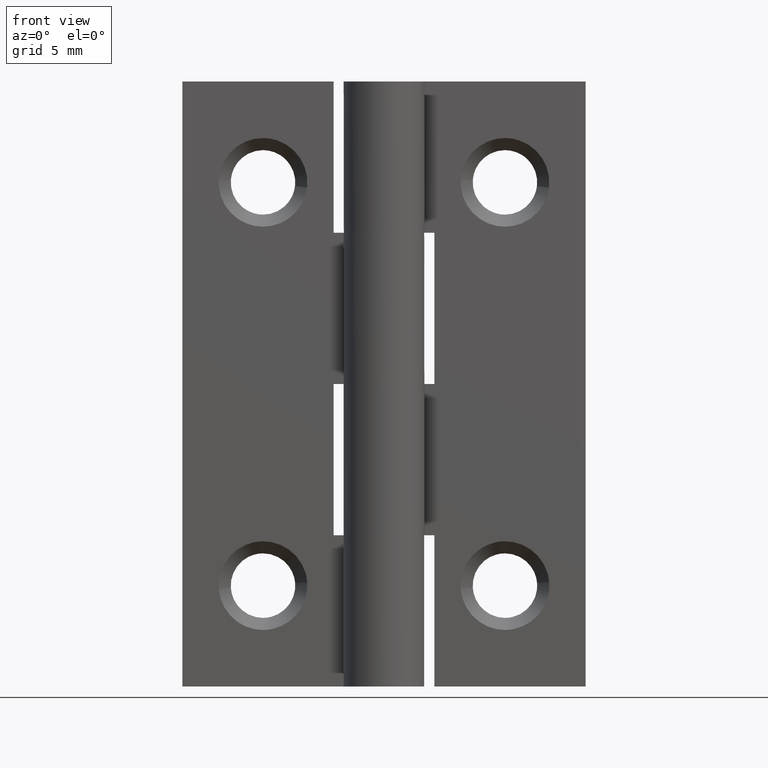
[diagram: clean part render]
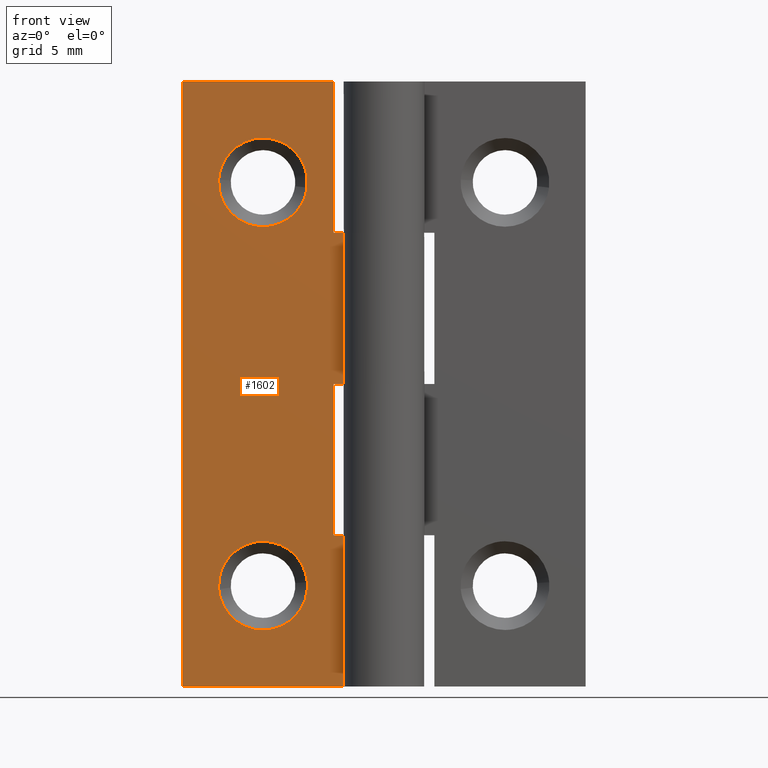
[diagram: same view with one face highlighted and labeled with its STEP entity id]
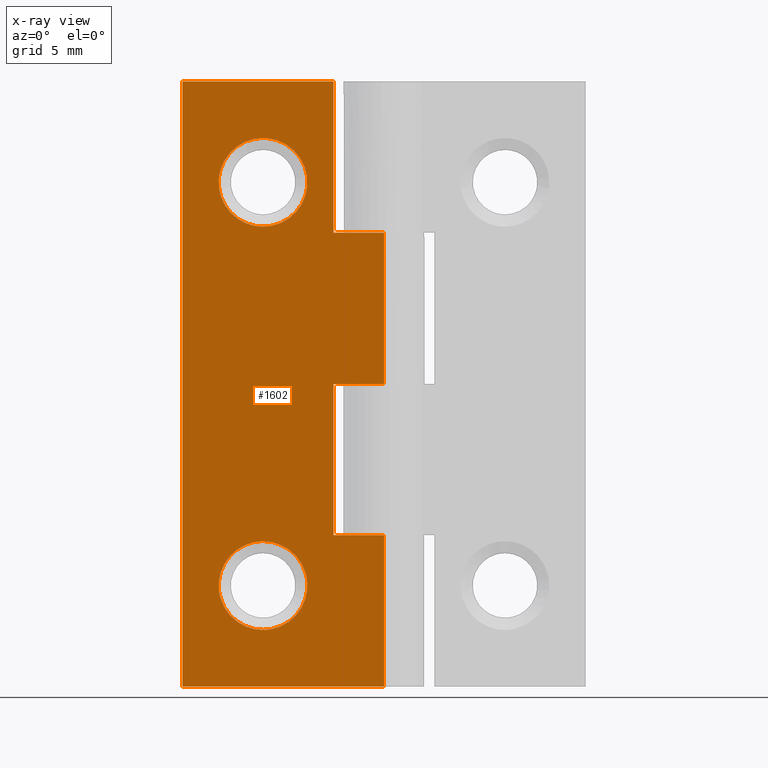
[diagram: x-ray of the same camera — body ghosted, the highlighted face saturated]
A machine part, front view. The second image highlights one B-rep face of the part: STEP entity #1602.
The next image is the same camera in x-ray: the body ghosted, the highlighted face saturated — about 0% of this face is hidden behind the body in this view.
In plain terms, the highlighted face is a freeform B-spline surface patch.
Its self-contained STEP definition (entity closure, byte-faithful):
#530=CARTESIAN_POINT('',(-3.815379041998920,0.999999999983829,24.740324683626660));
#531=VERTEX_POINT('',#530);
#537=CARTESIAN_POINT('',(-6.0,1.0,27.199999999999999));
#538=VERTEX_POINT('',#537);
#539=CARTESIAN_POINT('',(-3.815379041998920,0.999999999983829,24.740324683626664));
#540=CARTESIAN_POINT('',(-3.800000000000000,1.0,24.869706936637900));
#541=CARTESIAN_POINT('',(-3.800000000000000,1.0,25.0));
#542=CARTESIAN_POINT('',(-3.800000000000000,1.0,27.200000000000010));
#543=CARTESIAN_POINT('',(-6.0,1.0,27.199999999999999));
#551=(BOUNDED_CURVE()B_SPLINE_CURVE(2,(#539,#540,#541,#542,#543),.UNSPECIFIED.,.F.,.U.)B_SPLINE_CURVE_WITH_KNOTS((3,2,3),(0.229562473496062,0.250000000000000,0.500000000000000),.UNSPECIFIED.)CURVE()GEOMETRIC_REPRESENTATION_ITEM()RATIONAL_B_SPLINE_CURVE((0.956026754149504,0.976055948310706,1.0,0.707106781186548,1.0))REPRESENTATION_ITEM(''));
#552=EDGE_CURVE('',#531,#538,#551,.T.);
#554=CARTESIAN_POINT('',(-8.195896556538806,0.999999999980032,25.134306787128850));
#555=VERTEX_POINT('',#554);
#556=CARTESIAN_POINT('',(-6.0,1.0,27.199999999999999));
#557=CARTESIAN_POINT('',(-8.069553346907471,1.0,27.200000000000003));
#558=CARTESIAN_POINT('',(-8.195896556538806,0.999999999980032,25.134306787128850));
#566=(BOUNDED_CURVE()B_SPLINE_CURVE(2,(#556,#557,#558),.UNSPECIFIED.,.F.,.U.)B_SPLINE_CURVE_WITH_KNOTS((3,3),(0.500000000000000,0.739332962218246),.UNSPECIFIED.)CURVE()GEOMETRIC_REPRESENTATION_ITEM()RATIONAL_B_SPLINE_CURVE((1.0,0.719603993310958,0.976072041622361))REPRESENTATION_ITEM(''));
#567=EDGE_CURVE('',#538,#555,#566,.T.);
#601=CARTESIAN_POINT('',(-6.0,1.0,22.800000000000001));
#602=VERTEX_POINT('',#601);
#603=CARTESIAN_POINT('',(-8.195896556538806,0.999999999980032,25.134306787128857));
#604=CARTESIAN_POINT('',(-8.200000000000001,1.0,25.067216079408265));
#605=CARTESIAN_POINT('',(-8.200000000000001,1.0,25.0));
#606=CARTESIAN_POINT('',(-8.200000000000001,1.0,22.799999999999994));
#607=CARTESIAN_POINT('',(-6.0,1.0,22.800000000000001));
#615=(BOUNDED_CURVE()B_SPLINE_CURVE(2,(#603,#604,#605,#606,#607),.UNSPECIFIED.,.F.,.U.)B_SPLINE_CURVE_WITH_KNOTS((3,2,3),(0.739332962218246,0.750000000000000,1.0),.UNSPECIFIED.)CURVE()GEOMETRIC_REPRESENTATION_ITEM()RATIONAL_B_SPLINE_CURVE((0.976072041622361,0.987502787875590,1.0,0.707106781186548,1.0))REPRESENTATION_ITEM(''));
#616=EDGE_CURVE('',#555,#602,#615,.T.);
#618=CARTESIAN_POINT('',(-6.0,1.0,22.800000000000001));
#619=CARTESIAN_POINT('',(-4.046016043134988,1.0,22.799999999999994));
#620=CARTESIAN_POINT('',(-3.815379041998920,0.999999999983829,24.740324683626653));
#628=(BOUNDED_CURVE()B_SPLINE_CURVE(2,(#618,#619,#620),.UNSPECIFIED.,.F.,.U.)B_SPLINE_CURVE_WITH_KNOTS((3,3),(0.0,0.229562473496062),.UNSPECIFIED.)CURVE()GEOMETRIC_REPRESENTATION_ITEM()RATIONAL_B_SPLINE_CURVE((1.0,0.731050832875842,0.956026754149504))REPRESENTATION_ITEM(''));
#629=EDGE_CURVE('',#602,#531,#628,.T.);
#855=CARTESIAN_POINT('',(-3.806781865777370,0.999999999975531,5.172610010789256));
#856=VERTEX_POINT('',#855);
#862=CARTESIAN_POINT('',(-6.0,1.0,7.200000000000000));
#863=VERTEX_POINT('',#862);
#864=CARTESIAN_POINT('',(-6.0,1.0,7.200000000000000));
#865=CARTESIAN_POINT('',(-3.966340918698092,1.0,7.200000000000001));
#866=CARTESIAN_POINT('',(-3.806781865777370,0.999999999975531,5.172610010789257));
#874=(BOUNDED_CURVE()B_SPLINE_CURVE(2,(#864,#865,#866),.UNSPECIFIED.,.F.,.U.)B_SPLINE_CURVE_WITH_KNOTS((3,3),(0.0,0.236331300603679),.UNSPECIFIED.)CURVE()GEOMETRIC_REPRESENTATION_ITEM()RATIONAL_B_SPLINE_CURVE((1.0,0.723120658639275,0.969723356111111))REPRESENTATION_ITEM(''));
#875=EDGE_CURVE('',#863,#856,#874,.T.);
#877=CARTESIAN_POINT('',(-8.193218134222631,0.999999999975530,4.827389989210745));
#878=VERTEX_POINT('',#877);
#879=CARTESIAN_POINT('',(-8.193218134222631,0.999999999975530,4.827389989210745));
#880=CARTESIAN_POINT('',(-8.200000000000001,1.0,4.913561764396186));
#881=CARTESIAN_POINT('',(-8.200000000000001,1.0,5.0));
#882=CARTESIAN_POINT('',(-8.200000000000001,1.0,7.200000000000000));
#883=CARTESIAN_POINT('',(-6.0,1.0,7.200000000000000));
#891=(BOUNDED_CURVE()B_SPLINE_CURVE(2,(#879,#880,#881,#882,#883),.UNSPECIFIED.,.F.,.U.)B_SPLINE_CURVE_WITH_KNOTS((3,2,3),(0.736331300603679,0.750000000000000,1.0),.UNSPECIFIED.)CURVE()GEOMETRIC_REPRESENTATION_ITEM()RATIONAL_B_SPLINE_CURVE((0.969723356111111,0.983986122547272,1.0,0.707106781186548,1.0))REPRESENTATION_ITEM(''));
#892=EDGE_CURVE('',#878,#863,#891,.T.);
#929=CARTESIAN_POINT('',(-6.0,1.0,2.800000000000000));
#930=VERTEX_POINT('',#929);
#931=CARTESIAN_POINT('',(-6.0,1.0,2.800000000000000));
#932=CARTESIAN_POINT('',(-8.033659081301904,1.0,2.800000000000001));
#933=CARTESIAN_POINT('',(-8.193218134222631,0.999999999975530,4.827389989210746));
#941=(BOUNDED_CURVE()B_SPLINE_CURVE(2,(#931,#932,#933),.UNSPECIFIED.,.F.,.U.)B_SPLINE_CURVE_WITH_KNOTS((3,3),(0.500000000000000,0.736331300603678),.UNSPECIFIED.)CURVE()GEOMETRIC_REPRESENTATION_ITEM()RATIONAL_B_SPLINE_CURVE((1.0,0.723120658639276,0.969723356111110))REPRESENTATION_ITEM(''));
#942=EDGE_CURVE('',#930,#878,#941,.T.);
#944=CARTESIAN_POINT('',(-3.806781865777370,0.999999999975531,5.172610010789257));
#945=CARTESIAN_POINT('',(-3.800000000000000,1.0,5.086438235603814));
#946=CARTESIAN_POINT('',(-3.800000000000000,1.0,5.0));
#947=CARTESIAN_POINT('',(-3.800000000000000,1.0,2.800000000000000));
#948=CARTESIAN_POINT('',(-6.0,1.0,2.800000000000000));
#956=(BOUNDED_CURVE()B_SPLINE_CURVE(2,(#944,#945,#946,#947,#948),.UNSPECIFIED.,.F.,.U.)B_SPLINE_CURVE_WITH_KNOTS((3,2,3),(0.236331300603679,0.250000000000000,0.500000000000000),.UNSPECIFIED.)CURVE()GEOMETRIC_REPRESENTATION_ITEM()RATIONAL_B_SPLINE_CURVE((0.969723356111111,0.983986122547272,1.0,0.707106781186548,1.0))REPRESENTATION_ITEM(''));
#957=EDGE_CURVE('',#856,#930,#956,.T.);
#968=CARTESIAN_POINT('',(-1.836910E-016,1.0,15.0));
#969=VERTEX_POINT('',#968);
#970=CARTESIAN_POINT('',(-2.500000000000000,1.0,15.0));
#971=VERTEX_POINT('',#970);
#972=CARTESIAN_POINT('',(-1.836910E-016,1.0,15.0));
#973=CARTESIAN_POINT('',(-2.500000000000000,1.0,15.0));
#974=QUASI_UNIFORM_CURVE('',1,(#972,#973),.UNSPECIFIED.,.F.,.U.);
#975=EDGE_CURVE('',#969,#971,#974,.T.);
#1046=CARTESIAN_POINT('',(-2.500000000000000,1.0,7.500000000000000));
#1047=VERTEX_POINT('',#1046);
#1048=CARTESIAN_POINT('',(-1.836910E-016,1.0,7.500000000000000));
#1049=VERTEX_POINT('',#1048);
#1050=CARTESIAN_POINT('',(-2.500000000000000,1.0,7.500000000000000));
#1051=CARTESIAN_POINT('',(-1.836910E-016,1.0,7.500000000000000));
#1052=QUASI_UNIFORM_CURVE('',1,(#1050,#1051),.UNSPECIFIED.,.F.,.U.);
#1053=EDGE_CURVE('',#1047,#1049,#1052,.T.);
#1124=CARTESIAN_POINT('',(-2.500000000000000,1.0,15.0));
#1125=CARTESIAN_POINT('',(-2.500000000000000,1.0,7.500000000000000));
#1126=QUASI_UNIFORM_CURVE('',1,(#1124,#1125),.UNSPECIFIED.,.F.,.U.);
#1127=EDGE_CURVE('',#971,#1047,#1126,.T.);
#1144=CARTESIAN_POINT('',(-2.500000000000000,1.0,30.0));
#1145=VERTEX_POINT('',#1144);
#1146=CARTESIAN_POINT('',(-2.500000000000000,1.0,22.500000000000000));
#1147=VERTEX_POINT('',#1146);
#1148=CARTESIAN_POINT('',(-2.500000000000000,1.0,30.0));
#1149=CARTESIAN_POINT('',(-2.500000000000000,1.0,22.500000000000000));
#1150=QUASI_UNIFORM_CURVE('',1,(#1148,#1149),.UNSPECIFIED.,.F.,.U.);
#1151=EDGE_CURVE('',#1145,#1147,#1150,.T.);
#1180=CARTESIAN_POINT('',(-1.836910E-016,1.0,22.500000000000000));
#1181=VERTEX_POINT('',#1180);
#1182=CARTESIAN_POINT('',(-2.500000000000000,1.0,22.500000000000000));
#1183=CARTESIAN_POINT('',(-1.836910E-016,1.0,22.500000000000000));
#1184=QUASI_UNIFORM_CURVE('',1,(#1182,#1183),.UNSPECIFIED.,.F.,.U.);
#1185=EDGE_CURVE('',#1147,#1181,#1184,.T.);
#1250=CARTESIAN_POINT('',(-10.0,1.0,0.0));
#1251=VERTEX_POINT('',#1250);
#1252=CARTESIAN_POINT('',(-1.836910E-016,1.0,0.0));
#1253=VERTEX_POINT('',#1252);
#1254=CARTESIAN_POINT('',(-10.0,1.0,0.0));
#1255=CARTESIAN_POINT('',(-1.836910E-016,1.0,0.0));
#1256=QUASI_UNIFORM_CURVE('',1,(#1254,#1255),.UNSPECIFIED.,.F.,.U.);
#1257=EDGE_CURVE('',#1251,#1253,#1256,.T.);
#1329=CARTESIAN_POINT('',(-10.0,1.0,30.0));
#1330=VERTEX_POINT('',#1329);
#1331=CARTESIAN_POINT('',(-10.0,1.0,30.0));
#1332=CARTESIAN_POINT('',(-10.0,1.0,0.0));
#1333=QUASI_UNIFORM_CURVE('',1,(#1331,#1332),.UNSPECIFIED.,.F.,.U.);
#1334=EDGE_CURVE('',#1330,#1251,#1333,.T.);
#1363=CARTESIAN_POINT('',(-10.0,1.0,30.0));
#1364=CARTESIAN_POINT('',(-2.500000000000000,1.0,30.0));
#1365=QUASI_UNIFORM_CURVE('',1,(#1363,#1364),.UNSPECIFIED.,.F.,.U.);
#1366=EDGE_CURVE('',#1330,#1145,#1365,.T.);
#1502=CARTESIAN_POINT('',(-1.836910E-016,1.0,22.500000000000000));
#1503=CARTESIAN_POINT('',(-1.836910E-016,1.0,15.0));
#1504=QUASI_UNIFORM_CURVE('',1,(#1502,#1503),.UNSPECIFIED.,.F.,.U.);
#1505=EDGE_CURVE('',#1181,#969,#1504,.T.);
#1533=CARTESIAN_POINT('',(-1.836910E-016,1.0,7.500000000000000));
#1534=CARTESIAN_POINT('',(-1.836910E-016,1.0,0.0));
#1535=QUASI_UNIFORM_CURVE('',1,(#1533,#1534),.UNSPECIFIED.,.F.,.U.);
#1536=EDGE_CURVE('',#1049,#1253,#1535,.T.);
#1573=CARTESIAN_POINT('',(-10.499499980618060,1.0,-1.498499941854179));
#1574=CARTESIAN_POINT('',(-10.499499980618060,1.0,31.498500746516889));
#1575=CARTESIAN_POINT('',(0.499500248838960,1.0,-1.498499941854179));
#1576=CARTESIAN_POINT('',(0.499500248838960,1.0,31.498500746516889));
#1577=B_SPLINE_SURFACE_WITH_KNOTS('',1,1,((#1573,#1575),(#1574,#1576)),.UNSPECIFIED.,.F.,.F.,.U.,(2,2),(2,2),(0.0,32.997000688371067),(0.0,10.999000229457019),.UNSPECIFIED.);
#1578=ORIENTED_EDGE('',*,*,#1053,.F.);
#1579=ORIENTED_EDGE('',*,*,#1127,.F.);
#1580=ORIENTED_EDGE('',*,*,#975,.F.);
#1581=ORIENTED_EDGE('',*,*,#1505,.F.);
#1582=ORIENTED_EDGE('',*,*,#1185,.F.);
#1583=ORIENTED_EDGE('',*,*,#1151,.F.);
#1584=ORIENTED_EDGE('',*,*,#1366,.F.);
#1585=ORIENTED_EDGE('',*,*,#1334,.T.);
#1586=ORIENTED_EDGE('',*,*,#1257,.T.);
#1587=ORIENTED_EDGE('',*,*,#1536,.F.);
#1588=EDGE_LOOP('',(#1578,#1579,#1580,#1581,#1582,#1583,#1584,#1585,#1586,#1587));
#1589=FACE_OUTER_BOUND('',#1588,.T.);
#1590=ORIENTED_EDGE('',*,*,#942,.T.);
#1591=ORIENTED_EDGE('',*,*,#892,.T.);
#1592=ORIENTED_EDGE('',*,*,#875,.T.);
#1593=ORIENTED_EDGE('',*,*,#957,.T.);
#1594=EDGE_LOOP('',(#1590,#1591,#1592,#1593));
#1595=FACE_BOUND('',#1594,.T.);
#1596=ORIENTED_EDGE('',*,*,#567,.F.);
#1597=ORIENTED_EDGE('',*,*,#552,.F.);
#1598=ORIENTED_EDGE('',*,*,#629,.F.);
#1599=ORIENTED_EDGE('',*,*,#616,.F.);
#1600=EDGE_LOOP('',(#1596,#1597,#1598,#1599));
#1601=FACE_BOUND('',#1600,.T.);
#1602=ADVANCED_FACE('',(#1589,#1595,#1601),#1577,.F.);